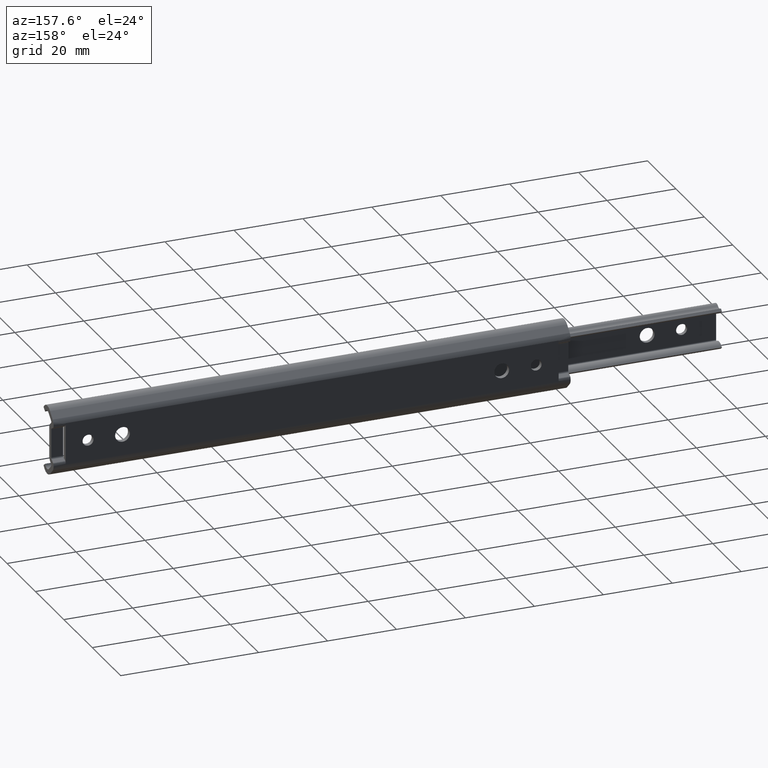
[diagram: clean part render]
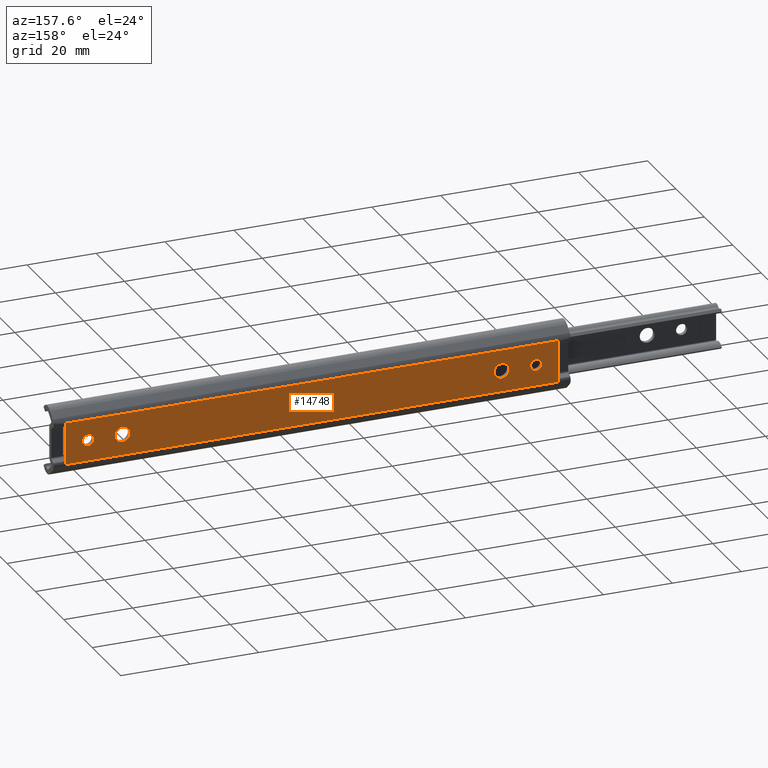
[diagram: same view with one face highlighted and labeled with its STEP entity id]
A machine part, auxiliary view. The second image highlights one B-rep face of the part: STEP entity #14748.
In plain terms, the highlighted face is a freeform B-spline surface patch.
Its self-contained STEP definition (entity closure, byte-faithful):
#11972=CARTESIAN_POINT('',(141.597015677285210,5.204170E-017,-0.097677666358624));
#11973=VERTEX_POINT('',#11972);
#11979=CARTESIAN_POINT('',(140.0,0.0,-1.600000000000000));
#11980=VERTEX_POINT('',#11979);
#11981=CARTESIAN_POINT('',(140.0,0.0,-1.600000000000000));
#11982=CARTESIAN_POINT('',(141.505129701189450,0.0,-1.600000000000000));
#11983=CARTESIAN_POINT('',(141.597015677285190,5.204170E-017,-0.097677666358624));
#11991=(BOUNDED_CURVE()B_SPLINE_CURVE(2,(#11981,#11982,#11983),.UNSPECIFIED.,.F.,.U.)B_SPLINE_CURVE_WITH_KNOTS((3,3),(0.500000000000000,0.739332961571483),.UNSPECIFIED.)CURVE()GEOMETRIC_REPRESENTATION_ITEM()RATIONAL_B_SPLINE_CURVE((1.0,0.719603994068688,0.976072040236225))REPRESENTATION_ITEM(''));
#11992=EDGE_CURVE('',#11980,#11973,#11991,.T.);
#11994=CARTESIAN_POINT('',(138.411184757913790,4.968999E-017,0.188854776255673));
#11995=VERTEX_POINT('',#11994);
#11996=CARTESIAN_POINT('',(138.411184757913790,4.968999E-017,0.188854776255673));
#11997=CARTESIAN_POINT('',(138.400000000000090,0.0,0.094758592256425));
#11998=CARTESIAN_POINT('',(138.400000000000010,0.0,0.0));
#11999=CARTESIAN_POINT('',(138.400000000000030,0.0,-1.600000000000000));
#12000=CARTESIAN_POINT('',(140.0,0.0,-1.600000000000000));
#12008=(BOUNDED_CURVE()B_SPLINE_CURVE(2,(#11996,#11997,#11998,#11999,#12000),.UNSPECIFIED.,.F.,.U.)B_SPLINE_CURVE_WITH_KNOTS((3,2,3),(0.229562473344417,0.250000000000000,0.500000000000000),.UNSPECIFIED.)CURVE()GEOMETRIC_REPRESENTATION_ITEM()RATIONAL_B_SPLINE_CURVE((0.956026753852274,0.976055948133043,1.0,0.707106781186548,1.0))REPRESENTATION_ITEM(''));
#12009=EDGE_CURVE('',#11995,#11980,#12008,.T.);
#12053=CARTESIAN_POINT('',(140.0,0.0,1.600000000000000));
#12054=VERTEX_POINT('',#12053);
#12055=CARTESIAN_POINT('',(140.0,0.0,1.600000000000000));
#12056=CARTESIAN_POINT('',(138.578920759927710,0.0,1.600000000000000));
#12057=CARTESIAN_POINT('',(138.411184757913790,4.968999E-017,0.188854776255673));
#12065=(BOUNDED_CURVE()B_SPLINE_CURVE(2,(#12055,#12056,#12057),.UNSPECIFIED.,.F.,.U.)B_SPLINE_CURVE_WITH_KNOTS((3,3),(0.0,0.229562473344417),.UNSPECIFIED.)CURVE()GEOMETRIC_REPRESENTATION_ITEM()RATIONAL_B_SPLINE_CURVE((1.0,0.731050833053505,0.956026753852274))REPRESENTATION_ITEM(''));
#12066=EDGE_CURVE('',#12054,#11995,#12065,.T.);
#12068=CARTESIAN_POINT('',(141.597015677285160,5.204170E-017,-0.097677666358624));
#12069=CARTESIAN_POINT('',(141.599999999999990,0.0,-0.048884424389295));
#12070=CARTESIAN_POINT('',(141.599999999999990,0.0,0.0));
#12071=CARTESIAN_POINT('',(141.599999999999970,0.0,1.600000000000000));
#12072=CARTESIAN_POINT('',(140.0,0.0,1.600000000000000));
#12080=(BOUNDED_CURVE()B_SPLINE_CURVE(2,(#12068,#12069,#12070,#12071,#12072),.UNSPECIFIED.,.F.,.U.)B_SPLINE_CURVE_WITH_KNOTS((3,2,3),(0.739332961571484,0.750000000000000,1.0),.UNSPECIFIED.)CURVE()GEOMETRIC_REPRESENTATION_ITEM()RATIONAL_B_SPLINE_CURVE((0.976072040236225,0.987502787117860,1.0,0.707106781186548,1.0))REPRESENTATION_ITEM(''));
#12081=EDGE_CURVE('',#11973,#12054,#12080,.T.);
#12158=CARTESIAN_POINT('',(132.145989816495300,5.204170E-017,-0.131254361826134));
#12159=VERTEX_POINT('',#12158);
#12165=CARTESIAN_POINT('',(130.0,0.0,-2.150000000000000));
#12166=VERTEX_POINT('',#12165);
#12167=CARTESIAN_POINT('',(130.0,0.0,-2.150000000000000));
#12168=CARTESIAN_POINT('',(132.022518040398610,0.0,-2.150000000000000));
#12169=CARTESIAN_POINT('',(132.145989816495300,5.204170E-017,-0.131254361826134));
#12177=(BOUNDED_CURVE()B_SPLINE_CURVE(2,(#12167,#12168,#12169),.UNSPECIFIED.,.F.,.U.)B_SPLINE_CURVE_WITH_KNOTS((3,3),(0.500000000000000,0.739332961948302),.UNSPECIFIED.)CURVE()GEOMETRIC_REPRESENTATION_ITEM()RATIONAL_B_SPLINE_CURVE((1.0,0.719603993627217,0.976072041043819))REPRESENTATION_ITEM(''));
#12178=EDGE_CURVE('',#12166,#12159,#12177,.T.);
#12180=CARTESIAN_POINT('',(127.865029518441300,4.968999E-017,0.253773605548097));
#12181=VERTEX_POINT('',#12180);
#12182=CARTESIAN_POINT('',(127.865029518441250,4.968999E-017,0.253773605548097));
#12183=CARTESIAN_POINT('',(127.849999999999980,0.0,0.127331858298627));
#12184=CARTESIAN_POINT('',(127.849999999999990,0.0,0.0));
#12185=CARTESIAN_POINT('',(127.850000000000010,0.0,-2.150000000000000));
#12186=CARTESIAN_POINT('',(130.0,0.0,-2.150000000000000));
#12194=(BOUNDED_CURVE()B_SPLINE_CURVE(2,(#12182,#12183,#12184,#12185,#12186),.UNSPECIFIED.,.F.,.U.)B_SPLINE_CURVE_WITH_KNOTS((3,2,3),(0.229562473351615,0.250000000000000,0.500000000000000),.UNSPECIFIED.)CURVE()GEOMETRIC_REPRESENTATION_ITEM()RATIONAL_B_SPLINE_CURVE((0.956026753866382,0.976055948141475,1.0,0.707106781186547,1.0))REPRESENTATION_ITEM(''));
#12195=EDGE_CURVE('',#12181,#12166,#12194,.T.);
#12239=CARTESIAN_POINT('',(130.0,0.0,2.150000000000000));
#12240=VERTEX_POINT('',#12239);
#12241=CARTESIAN_POINT('',(130.0,0.0,2.150000000000000));
#12242=CARTESIAN_POINT('',(128.090424771070990,0.0,2.150000000000000));
#12243=CARTESIAN_POINT('',(127.865029518441260,4.968999E-017,0.253773605548097));
#12251=(BOUNDED_CURVE()B_SPLINE_CURVE(2,(#12241,#12242,#12243),.UNSPECIFIED.,.F.,.U.)B_SPLINE_CURVE_WITH_KNOTS((3,3),(0.0,0.229562473351615),.UNSPECIFIED.)CURVE()GEOMETRIC_REPRESENTATION_ITEM()RATIONAL_B_SPLINE_CURVE((1.0,0.731050833045072,0.956026753866382))REPRESENTATION_ITEM(''));
#12252=EDGE_CURVE('',#12240,#12181,#12251,.T.);
#12254=CARTESIAN_POINT('',(132.145989816495300,5.204170E-017,-0.131254361826134));
#12255=CARTESIAN_POINT('',(132.150000000000060,0.0,-0.065688442923278));
#12256=CARTESIAN_POINT('',(132.150000000000010,0.0,0.0));
#12257=CARTESIAN_POINT('',(132.150000000000010,0.0,2.150000000000000));
#12258=CARTESIAN_POINT('',(130.0,0.0,2.150000000000000));
#12266=(BOUNDED_CURVE()B_SPLINE_CURVE(2,(#12254,#12255,#12256,#12257,#12258),.UNSPECIFIED.,.F.,.U.)B_SPLINE_CURVE_WITH_KNOTS((3,2,3),(0.739332961948301,0.750000000000000,1.0),.UNSPECIFIED.)CURVE()GEOMETRIC_REPRESENTATION_ITEM()RATIONAL_B_SPLINE_CURVE((0.976072041043817,0.987502787559329,1.0,0.707106781186547,1.0))REPRESENTATION_ITEM(''));
#12267=EDGE_CURVE('',#12159,#12240,#12266,.T.);
#12344=CARTESIAN_POINT('',(22.145989816495320,5.204170E-017,-0.131254361826134));
#12345=VERTEX_POINT('',#12344);
#12351=CARTESIAN_POINT('',(20.0,0.0,-2.150000000000000));
#12352=VERTEX_POINT('',#12351);
#12353=CARTESIAN_POINT('',(20.0,0.0,-2.150000000000000));
#12354=CARTESIAN_POINT('',(22.022518040398577,0.0,-2.150000000000000));
#12355=CARTESIAN_POINT('',(22.145989816495320,5.204170E-017,-0.131254361826134));
#12363=(BOUNDED_CURVE()B_SPLINE_CURVE(2,(#12353,#12354,#12355),.UNSPECIFIED.,.F.,.U.)B_SPLINE_CURVE_WITH_KNOTS((3,3),(0.500000000000000,0.739332961948302),.UNSPECIFIED.)CURVE()GEOMETRIC_REPRESENTATION_ITEM()RATIONAL_B_SPLINE_CURVE((1.0,0.719603993627217,0.976072041043819))REPRESENTATION_ITEM(''));
#12364=EDGE_CURVE('',#12352,#12345,#12363,.T.);
#12366=CARTESIAN_POINT('',(17.865029518441268,4.968999E-017,0.253773605548098));
#12367=VERTEX_POINT('',#12366);
#12368=CARTESIAN_POINT('',(17.865029518441268,4.968999E-017,0.253773605548098));
#12369=CARTESIAN_POINT('',(17.850000000000005,0.0,0.127331858298627));
#12370=CARTESIAN_POINT('',(17.850000000000001,0.0,0.0));
#12371=CARTESIAN_POINT('',(17.849999999999998,0.0,-2.150000000000000));
#12372=CARTESIAN_POINT('',(20.0,0.0,-2.150000000000000));
#12380=(BOUNDED_CURVE()B_SPLINE_CURVE(2,(#12368,#12369,#12370,#12371,#12372),.UNSPECIFIED.,.F.,.U.)B_SPLINE_CURVE_WITH_KNOTS((3,2,3),(0.229562473351615,0.250000000000000,0.500000000000000),.UNSPECIFIED.)CURVE()GEOMETRIC_REPRESENTATION_ITEM()RATIONAL_B_SPLINE_CURVE((0.956026753866382,0.976055948141475,1.0,0.707106781186547,1.0))REPRESENTATION_ITEM(''));
#12381=EDGE_CURVE('',#12367,#12352,#12380,.T.);
#12425=CARTESIAN_POINT('',(20.0,0.0,2.150000000000000));
#12426=VERTEX_POINT('',#12425);
#12427=CARTESIAN_POINT('',(20.0,0.0,2.150000000000000));
#12428=CARTESIAN_POINT('',(18.090424771070978,0.0,2.150000000000000));
#12429=CARTESIAN_POINT('',(17.865029518441272,4.968999E-017,0.253773605548098));
#12437=(BOUNDED_CURVE()B_SPLINE_CURVE(2,(#12427,#12428,#12429),.UNSPECIFIED.,.F.,.U.)B_SPLINE_CURVE_WITH_KNOTS((3,3),(0.0,0.229562473351615),.UNSPECIFIED.)CURVE()GEOMETRIC_REPRESENTATION_ITEM()RATIONAL_B_SPLINE_CURVE((1.0,0.731050833045072,0.956026753866382))REPRESENTATION_ITEM(''));
#12438=EDGE_CURVE('',#12426,#12367,#12437,.T.);
#12440=CARTESIAN_POINT('',(22.145989816495320,5.204170E-017,-0.131254361826134));
#12441=CARTESIAN_POINT('',(22.149999999999999,0.0,-0.065688442923278));
#12442=CARTESIAN_POINT('',(22.149999999999999,0.0,0.0));
#12443=CARTESIAN_POINT('',(22.150000000000006,0.0,2.150000000000000));
#12444=CARTESIAN_POINT('',(20.0,0.0,2.150000000000000));
#12452=(BOUNDED_CURVE()B_SPLINE_CURVE(2,(#12440,#12441,#12442,#12443,#12444),.UNSPECIFIED.,.F.,.U.)B_SPLINE_CURVE_WITH_KNOTS((3,2,3),(0.739332961948301,0.750000000000000,1.0),.UNSPECIFIED.)CURVE()GEOMETRIC_REPRESENTATION_ITEM()RATIONAL_B_SPLINE_CURVE((0.976072041043817,0.987502787559329,1.0,0.707106781186547,1.0))REPRESENTATION_ITEM(''));
#12453=EDGE_CURVE('',#12345,#12426,#12452,.T.);
#12530=CARTESIAN_POINT('',(11.597015677285210,5.204170E-017,-0.097677666358625));
#12531=VERTEX_POINT('',#12530);
#12537=CARTESIAN_POINT('',(10.0,0.0,-1.600000000000000));
#12538=VERTEX_POINT('',#12537);
#12539=CARTESIAN_POINT('',(10.0,0.0,-1.600000000000000));
#12540=CARTESIAN_POINT('',(11.505129701189530,0.0,-1.600000000000000));
#12541=CARTESIAN_POINT('',(11.597015677285208,5.204170E-017,-0.097677666358625));
#12549=(BOUNDED_CURVE()B_SPLINE_CURVE(2,(#12539,#12540,#12541),.UNSPECIFIED.,.F.,.U.)B_SPLINE_CURVE_WITH_KNOTS((3,3),(0.500000000000000,0.739332961571483),.UNSPECIFIED.)CURVE()GEOMETRIC_REPRESENTATION_ITEM()RATIONAL_B_SPLINE_CURVE((1.0,0.719603994068688,0.976072040236225))REPRESENTATION_ITEM(''));
#12550=EDGE_CURVE('',#12538,#12531,#12549,.T.);
#12552=CARTESIAN_POINT('',(8.411184757913803,4.968999E-017,0.188854776255672));
#12553=VERTEX_POINT('',#12552);
#12554=CARTESIAN_POINT('',(8.411184757913803,4.968999E-017,0.188854776255672));
#12555=CARTESIAN_POINT('',(8.400000000000000,0.0,0.094758592256423));
#12556=CARTESIAN_POINT('',(8.400000000000000,0.0,0.0));
#12557=CARTESIAN_POINT('',(8.400000000000000,0.0,-1.600000000000000));
#12558=CARTESIAN_POINT('',(10.0,0.0,-1.600000000000000));
#12566=(BOUNDED_CURVE()B_SPLINE_CURVE(2,(#12554,#12555,#12556,#12557,#12558),.UNSPECIFIED.,.F.,.U.)B_SPLINE_CURVE_WITH_KNOTS((3,2,3),(0.229562473344418,0.250000000000000,0.500000000000000),.UNSPECIFIED.)CURVE()GEOMETRIC_REPRESENTATION_ITEM()RATIONAL_B_SPLINE_CURVE((0.956026753852275,0.976055948133043,1.0,0.707106781186548,1.0))REPRESENTATION_ITEM(''));
#12567=EDGE_CURVE('',#12553,#12538,#12566,.T.);
#12611=CARTESIAN_POINT('',(10.0,0.0,1.600000000000000));
#12612=VERTEX_POINT('',#12611);
#12613=CARTESIAN_POINT('',(10.0,0.0,1.600000000000000));
#12614=CARTESIAN_POINT('',(8.578920759927721,0.0,1.600000000000000));
#12615=CARTESIAN_POINT('',(8.411184757913803,4.968999E-017,0.188854776255672));
#12623=(BOUNDED_CURVE()B_SPLINE_CURVE(2,(#12613,#12614,#12615),.UNSPECIFIED.,.F.,.U.)B_SPLINE_CURVE_WITH_KNOTS((3,3),(0.0,0.229562473344418),.UNSPECIFIED.)CURVE()GEOMETRIC_REPRESENTATION_ITEM()RATIONAL_B_SPLINE_CURVE((1.0,0.731050833053504,0.956026753852275))REPRESENTATION_ITEM(''));
#12624=EDGE_CURVE('',#12612,#12553,#12623,.T.);
#12626=CARTESIAN_POINT('',(11.597015677285210,5.204170E-017,-0.097677666358625));
#12627=CARTESIAN_POINT('',(11.600000000000005,0.0,-0.048884424389296));
#12628=CARTESIAN_POINT('',(11.600000000000000,0.0,0.0));
#12629=CARTESIAN_POINT('',(11.600000000000001,0.0,1.600000000000000));
#12630=CARTESIAN_POINT('',(10.0,0.0,1.600000000000000));
#12638=(BOUNDED_CURVE()B_SPLINE_CURVE(2,(#12626,#12627,#12628,#12629,#12630),.UNSPECIFIED.,.F.,.U.)B_SPLINE_CURVE_WITH_KNOTS((3,2,3),(0.739332961571483,0.750000000000000,1.0),.UNSPECIFIED.)CURVE()GEOMETRIC_REPRESENTATION_ITEM()RATIONAL_B_SPLINE_CURVE((0.976072040236225,0.987502787117860,1.0,0.707106781186548,1.0))REPRESENTATION_ITEM(''));
#12639=EDGE_CURVE('',#12531,#12612,#12638,.T.);
#14389=CARTESIAN_POINT('',(3.499999999999950,7.958044E-014,-6.081989000000000));
#14390=VERTEX_POINT('',#14389);
#14391=CARTESIAN_POINT('',(3.499999999999950,-9.085614E-014,6.081989000000000));
#14392=VERTEX_POINT('',#14391);
#14393=CARTESIAN_POINT('',(3.499999999999950,7.958044E-014,-6.081989000000000));
#14394=CARTESIAN_POINT('',(3.499999999999950,-9.085614E-014,6.081989000000000));
#14395=QUASI_UNIFORM_CURVE('',1,(#14393,#14394),.UNSPECIFIED.,.F.,.U.);
#14396=EDGE_CURVE('',#14390,#14392,#14395,.T.);
#14674=CARTESIAN_POINT('',(146.500000000000000,8.521829E-014,-6.081989000000000));
#14675=VERTEX_POINT('',#14674);
#14676=CARTESIAN_POINT('',(146.500000000000000,8.521829E-014,-6.081989000000000));
#14677=CARTESIAN_POINT('',(3.499999999999950,7.958044E-014,-6.081989000000000));
#14678=QUASI_UNIFORM_CURVE('',1,(#14676,#14677),.UNSPECIFIED.,.F.,.U.);
#14679=EDGE_CURVE('',#14675,#14390,#14678,.T.);
#14703=CARTESIAN_POINT('',(-3.642849722838307,8.526513E-014,-6.689579519878856));
#14704=CARTESIAN_POINT('',(-3.642849722838307,8.526513E-014,6.689579084861101));
#14705=CARTESIAN_POINT('',(153.642853558397210,8.526513E-014,-6.689579519878856));
#14706=CARTESIAN_POINT('',(153.642853558397210,8.526513E-014,6.689579084861101));
#14707=B_SPLINE_SURFACE_WITH_KNOTS('',1,1,((#14703,#14705),(#14704,#14706)),.UNSPECIFIED.,.F.,.F.,.U.,(2,2),(2,2),(0.0,13.379158604739960),(0.0,157.285703281235410),.UNSPECIFIED.);
#14708=CARTESIAN_POINT('',(146.500000000000000,-9.085614E-014,6.081988999999800));
#14709=VERTEX_POINT('',#14708);
#14710=CARTESIAN_POINT('',(146.500000000000000,-9.085614E-014,6.081988999999800));
#14711=CARTESIAN_POINT('',(3.499999999999950,-9.085614E-014,6.081989000000000));
#14712=QUASI_UNIFORM_CURVE('',1,(#14710,#14711),.UNSPECIFIED.,.F.,.U.);
#14713=EDGE_CURVE('',#14709,#14392,#14712,.T.);
#14714=ORIENTED_EDGE('',*,*,#14713,.F.);
#14715=CARTESIAN_POINT('',(146.500000000000000,-9.085614E-014,6.081988999999800));
#14716=CARTESIAN_POINT('',(146.500000000000000,8.521829E-014,-6.081989000000000));
#14717=QUASI_UNIFORM_CURVE('',1,(#14715,#14716),.UNSPECIFIED.,.F.,.U.);
#14718=EDGE_CURVE('',#14709,#14675,#14717,.T.);
#14719=ORIENTED_EDGE('',*,*,#14718,.T.);
#14720=ORIENTED_EDGE('',*,*,#14679,.T.);
#14721=ORIENTED_EDGE('',*,*,#14396,.T.);
#14722=EDGE_LOOP('',(#14714,#14719,#14720,#14721));
#14723=FACE_OUTER_BOUND('',#14722,.T.);
#14724=ORIENTED_EDGE('',*,*,#12550,.T.);
#14725=ORIENTED_EDGE('',*,*,#12639,.T.);
#14726=ORIENTED_EDGE('',*,*,#12624,.T.);
#14727=ORIENTED_EDGE('',*,*,#12567,.T.);
#14728=EDGE_LOOP('',(#14724,#14725,#14726,#14727));
#14729=FACE_BOUND('',#14728,.T.);
#14730=ORIENTED_EDGE('',*,*,#12364,.T.);
#14731=ORIENTED_EDGE('',*,*,#12453,.T.);
#14732=ORIENTED_EDGE('',*,*,#12438,.T.);
#14733=ORIENTED_EDGE('',*,*,#12381,.T.);
#14734=EDGE_LOOP('',(#14730,#14731,#14732,#14733));
#14735=FACE_BOUND('',#14734,.T.);
#14736=ORIENTED_EDGE('',*,*,#12178,.T.);
#14737=ORIENTED_EDGE('',*,*,#12267,.T.);
#14738=ORIENTED_EDGE('',*,*,#12252,.T.);
#14739=ORIENTED_EDGE('',*,*,#12195,.T.);
#14740=EDGE_LOOP('',(#14736,#14737,#14738,#14739));
#14741=FACE_BOUND('',#14740,.T.);
#14742=ORIENTED_EDGE('',*,*,#11992,.T.);
#14743=ORIENTED_EDGE('',*,*,#12081,.T.);
#14744=ORIENTED_EDGE('',*,*,#12066,.T.);
#14745=ORIENTED_EDGE('',*,*,#12009,.T.);
#14746=EDGE_LOOP('',(#14742,#14743,#14744,#14745));
#14747=FACE_BOUND('',#14746,.T.);
#14748=ADVANCED_FACE('',(#14723,#14729,#14735,#14741,#14747),#14707,.T.);